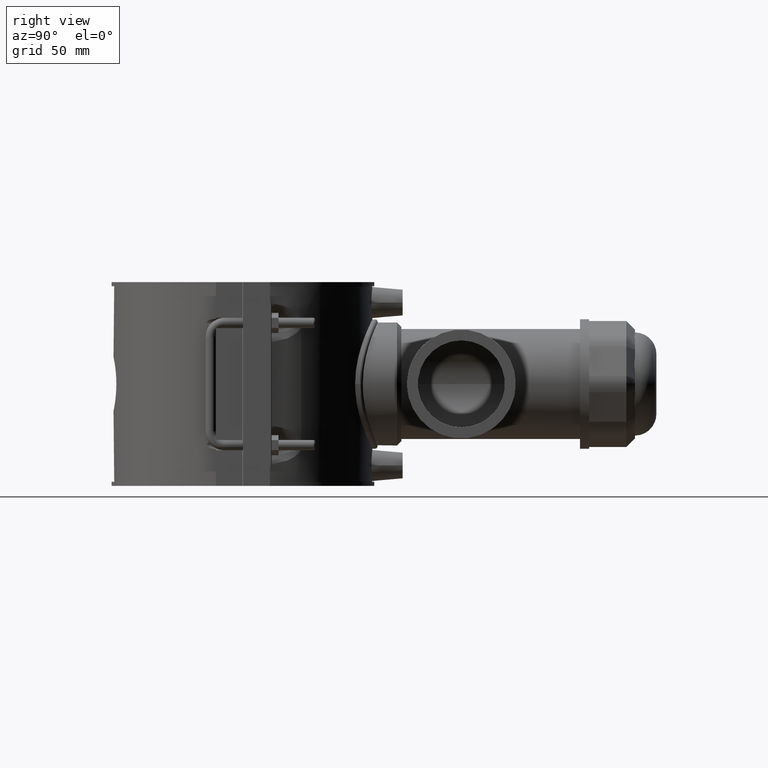
[diagram: clean part render]
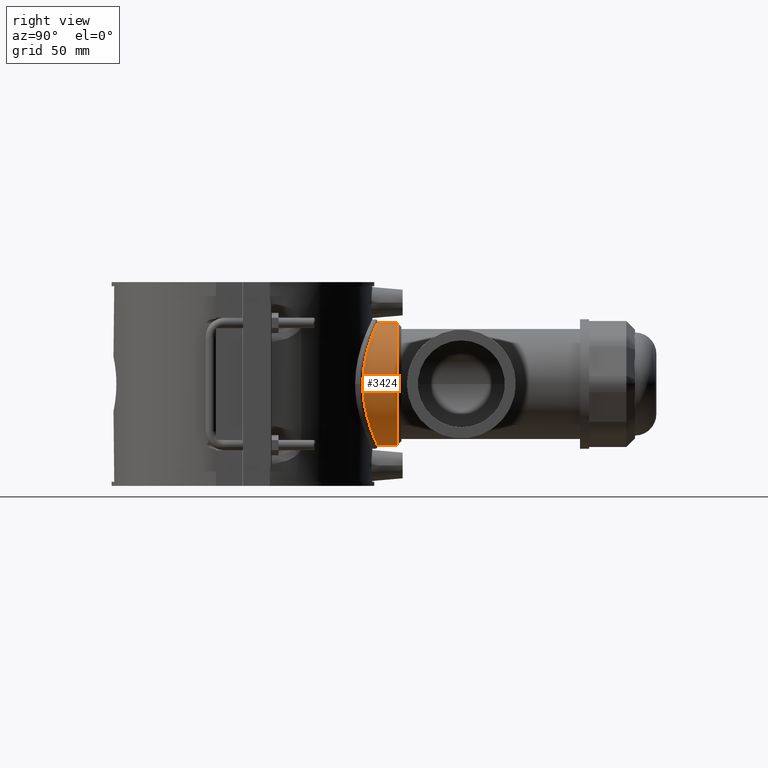
[diagram: same view with one face highlighted and labeled with its STEP entity id]
A machine part, right view. The second image highlights one B-rep face of the part: STEP entity #3424.
In plain terms, the highlighted cylindrical surface (bore or boss wall) has radius 35.625 mm, axis along (0, 1, 0).
Its self-contained STEP definition (entity closure, byte-faithful):
#644=FACE_BOUND('',#1046,.T.);
#701=B_SPLINE_CURVE_WITH_KNOTS('',3,(#5086,#5087,#5088,#5089,#5090,#5091,
#5092,#5093,#5094,#5095,#5096,#5097,#5098,#5099,#5100,#5101,#5102,#5103,
#5104,#5105,#5106,#5107,#5108,#5109,#5110,#5111,#5112,#5113,#5114,#5115,
#5116,#5117,#5118,#5119,#5120,#5121,#5122,#5123,#5124,#5125,#5126,#5127,
#5128,#5129,#5130,#5131,#5132,#5133,#5134,#5135,#5136,#5137,#5138,#5139,
#5140,#5141,#5142,#5143,#5144,#5145,#5146,#5147,#5148,#5149,#5150,#5151),
 .UNSPECIFIED.,.T.,.F.,(4,2,2,2,2,2,2,2,2,2,2,2,2,2,2,2,2,2,2,2,2,2,2,2,
2,2,2,2,2,2,2,2,4),(0.,0.682761412627462,1.36552282525492,2.04828423788239,
2.73104565050985,3.41256989767098,4.0940941448321,4.77561839199323,5.45714263915436,
6.13866688631549,6.82019113347662,7.50171538063774,8.18323962779887,8.86600104042634,
9.5487624530538,10.2315238656813,10.9142852783087,11.5970466909362,12.2798081035636,
12.9625695161911,13.6453309288186,14.3268551759797,15.0083794231408,15.689903670302,
16.3714279174631,17.0529521646242,17.7344764117853,18.4160006589465,19.0975249061076,
19.7802863187351,20.4630477313625,21.14580914399,21.8285705566174),
 .UNSPECIFIED.);
#775=CYLINDRICAL_SURFACE('',#3638,35.625);
#832=FACE_OUTER_BOUND('',#1045,.T.);
#1045=EDGE_LOOP('',(#2278));
#1046=EDGE_LOOP('',(#2279));
#1310=CIRCLE('',#3639,35.625);
#1439=VERTEX_POINT('',#5083);
#1440=VERTEX_POINT('',#5085);
#1776=EDGE_CURVE('',#1439,#1439,#1310,.T.);
#1777=EDGE_CURVE('',#1440,#1440,#701,.T.);
#2278=ORIENTED_EDGE('',*,*,#1776,.F.);
#2279=ORIENTED_EDGE('',*,*,#1777,.F.);
#3424=ADVANCED_FACE('',(#832,#644),#775,.T.);
#3638=AXIS2_PLACEMENT_3D('',#5082,#3976,#3977);
#3639=AXIS2_PLACEMENT_3D('',#5084,#3978,#3979);
#3976=DIRECTION('center_axis',(0.,1.,3.06161699786838E-16));
#3977=DIRECTION('ref_axis',(0.,0.,1.));
#3978=DIRECTION('center_axis',(0.,1.,3.06161699786838E-16));
#3979=DIRECTION('ref_axis',(0.,0.,-1.));
#5082=CARTESIAN_POINT('Origin',(0.,45.85,-5.09759230145085E-15));
#5083=CARTESIAN_POINT('',(4.36280422196245E-15,89.25,35.625));
#5084=CARTESIAN_POINT('Origin',(0.,89.25,8.18982546929795E-15));
#5085=CARTESIAN_POINT('',(35.625,69.3891877384366,1.11022302462516E-15));
#5086=CARTESIAN_POINT('Ctrl Pts',(35.625,69.3891877384366,1.11022302462516E-15));
#5087=CARTESIAN_POINT('Ctrl Pts',(35.625,69.3891877384366,2.27587137542487));
#5088=CARTESIAN_POINT('Ctrl Pts',(35.4034485865259,69.5043869183581,4.61620873931133));
#5089=CARTESIAN_POINT('Ctrl Pts',(34.4847720502536,69.9647373214708,9.24738084725786));
#5090=CARTESIAN_POINT('Ctrl Pts',(33.7879882273569,70.3092217917886,11.5383495400039));
#5091=CARTESIAN_POINT('Ctrl Pts',(31.9609948621865,71.1583406481538,15.9140405689302));
#5092=CARTESIAN_POINT('Ctrl Pts',(30.8293352243049,71.6626057185078,18.0028809425869));
#5093=CARTESIAN_POINT('Ctrl Pts',(28.2265298782656,72.7271612214904,21.8589717111346));
#5094=CARTESIAN_POINT('Ctrl Pts',(26.7550653800705,73.286415948176,23.6262927794711));
#5095=CARTESIAN_POINT('Ctrl Pts',(23.6291274515409,74.3531218514191,26.7522307080006));
#5096=CARTESIAN_POINT('Ctrl Pts',(21.8631908523632,74.8997952940947,28.2233106902916));
#5097=CARTESIAN_POINT('Ctrl Pts',(18.0064651856579,75.9193365407289,30.8272864905149));
#5098=CARTESIAN_POINT('Ctrl Pts',(15.9155954586975,76.391379679928,31.9603856576681));
#5099=CARTESIAN_POINT('Ctrl Pts',(11.5357234860335,77.174323158286,33.7890446683407));
#5100=CARTESIAN_POINT('Ctrl Pts',(9.24265527500073,77.4853514704827,34.486061260091));
#5101=CARTESIAN_POINT('Ctrl Pts',(4.61070796295516,77.8983166770972,35.4041871798542));
#5102=CARTESIAN_POINT('Ctrl Pts',(2.27174749053709,78.,35.625));
#5103=CARTESIAN_POINT('Ctrl Pts',(-2.2717474905371,78.,35.625));
#5104=CARTESIAN_POINT('Ctrl Pts',(-4.61070796295516,77.8983166770972,35.4041871798542));
#5105=CARTESIAN_POINT('Ctrl Pts',(-9.24265527500073,77.4853514704827,34.486061260091));
#5106=CARTESIAN_POINT('Ctrl Pts',(-11.5357234860335,77.174323158286,33.7890446683407));
#5107=CARTESIAN_POINT('Ctrl Pts',(-15.9155954586975,76.391379679928,31.9603856576681));
#5108=CARTESIAN_POINT('Ctrl Pts',(-18.0064651856579,75.9193365407289,30.8272864905149));
#5109=CARTESIAN_POINT('Ctrl Pts',(-21.8631908523632,74.8997952940947,28.2233106902916));
#5110=CARTESIAN_POINT('Ctrl Pts',(-23.6291274515409,74.3531218514191,26.7522307080006));
#5111=CARTESIAN_POINT('Ctrl Pts',(-26.7550653800705,73.286415948176,23.6262927794711));
#5112=CARTESIAN_POINT('Ctrl Pts',(-28.2265298782656,72.7271612214904,21.8589717111346));
#5113=CARTESIAN_POINT('Ctrl Pts',(-30.8293352243049,71.6626057185078,18.0028809425869));
#5114=CARTESIAN_POINT('Ctrl Pts',(-31.9609948621865,71.1583406481538,15.9140405689302));
#5115=CARTESIAN_POINT('Ctrl Pts',(-33.7879882273569,70.3092217917886,11.5383495400039));
#5116=CARTESIAN_POINT('Ctrl Pts',(-34.4847720502536,69.9647373214708,9.24738084725786));
#5117=CARTESIAN_POINT('Ctrl Pts',(-35.4034485865259,69.5043869183581,4.61620873931133));
#5118=CARTESIAN_POINT('Ctrl Pts',(-35.625,69.3891877384366,2.27587137542487));
#5119=CARTESIAN_POINT('Ctrl Pts',(-35.625,69.3891877384366,-2.27587137542487));
#5120=CARTESIAN_POINT('Ctrl Pts',(-35.4034485865259,69.5043869183581,-4.61620873931133));
#5121=CARTESIAN_POINT('Ctrl Pts',(-34.4847720502536,69.9647373214708,-9.24738084725786));
#5122=CARTESIAN_POINT('Ctrl Pts',(-33.7879882273569,70.3092217917886,-11.5383495400039));
#5123=CARTESIAN_POINT('Ctrl Pts',(-31.9609948621865,71.1583406481538,-15.9140405689302));
#5124=CARTESIAN_POINT('Ctrl Pts',(-30.8293352243049,71.6626057185078,-18.0028809425869));
#5125=CARTESIAN_POINT('Ctrl Pts',(-28.2265298782656,72.7271612214904,-21.8589717111346));
#5126=CARTESIAN_POINT('Ctrl Pts',(-26.7550653800705,73.286415948176,-23.6262927794711));
#5127=CARTESIAN_POINT('Ctrl Pts',(-23.6291274515409,74.3531218514191,-26.7522307080006));
#5128=CARTESIAN_POINT('Ctrl Pts',(-21.8631908523632,74.8997952940947,-28.2233106902916));
#5129=CARTESIAN_POINT('Ctrl Pts',(-18.0064651856579,75.9193365407289,-30.8272864905149));
#5130=CARTESIAN_POINT('Ctrl Pts',(-15.9155954586975,76.391379679928,-31.9603856576681));
#5131=CARTESIAN_POINT('Ctrl Pts',(-11.5357234860335,77.174323158286,-33.7890446683407));
#5132=CARTESIAN_POINT('Ctrl Pts',(-9.24265527500074,77.4853514704827,-34.486061260091));
#5133=CARTESIAN_POINT('Ctrl Pts',(-4.61070796295517,77.8983166770972,-35.4041871798541));
#5134=CARTESIAN_POINT('Ctrl Pts',(-2.2717474905371,78.,-35.625));
#5135=CARTESIAN_POINT('Ctrl Pts',(2.27174749053709,78.,-35.625));
#5136=CARTESIAN_POINT('Ctrl Pts',(4.61070796295516,77.8983166770972,-35.4041871798541));
#5137=CARTESIAN_POINT('Ctrl Pts',(9.24265527500073,77.4853514704827,-34.486061260091));
#5138=CARTESIAN_POINT('Ctrl Pts',(11.5357234860335,77.174323158286,-33.7890446683407));
#5139=CARTESIAN_POINT('Ctrl Pts',(15.9155954586975,76.391379679928,-31.9603856576681));
#5140=CARTESIAN_POINT('Ctrl Pts',(18.006465185658,75.9193365407289,-30.8272864905149));
#5141=CARTESIAN_POINT('Ctrl Pts',(21.8631908523632,74.8997952940947,-28.2233106902916));
#5142=CARTESIAN_POINT('Ctrl Pts',(23.6291274515409,74.3531218514191,-26.7522307080006));
#5143=CARTESIAN_POINT('Ctrl Pts',(26.7550653800705,73.286415948176,-23.6262927794711));
#5144=CARTESIAN_POINT('Ctrl Pts',(28.2265298782656,72.7271612214904,-21.8589717111347));
#5145=CARTESIAN_POINT('Ctrl Pts',(30.8293352243049,71.6626057185078,-18.0028809425869));
#5146=CARTESIAN_POINT('Ctrl Pts',(31.9609948621865,71.1583406481538,-15.9140405689302));
#5147=CARTESIAN_POINT('Ctrl Pts',(33.7879882273569,70.3092217917886,-11.5383495400039));
#5148=CARTESIAN_POINT('Ctrl Pts',(34.4847720502536,69.9647373214708,-9.24738084725785));
#5149=CARTESIAN_POINT('Ctrl Pts',(35.4034485865259,69.5043869183581,-4.61620873931132));
#5150=CARTESIAN_POINT('Ctrl Pts',(35.625,69.3891877384366,-2.27587137542487));
#5151=CARTESIAN_POINT('Ctrl Pts',(35.625,69.3891877384366,0.));